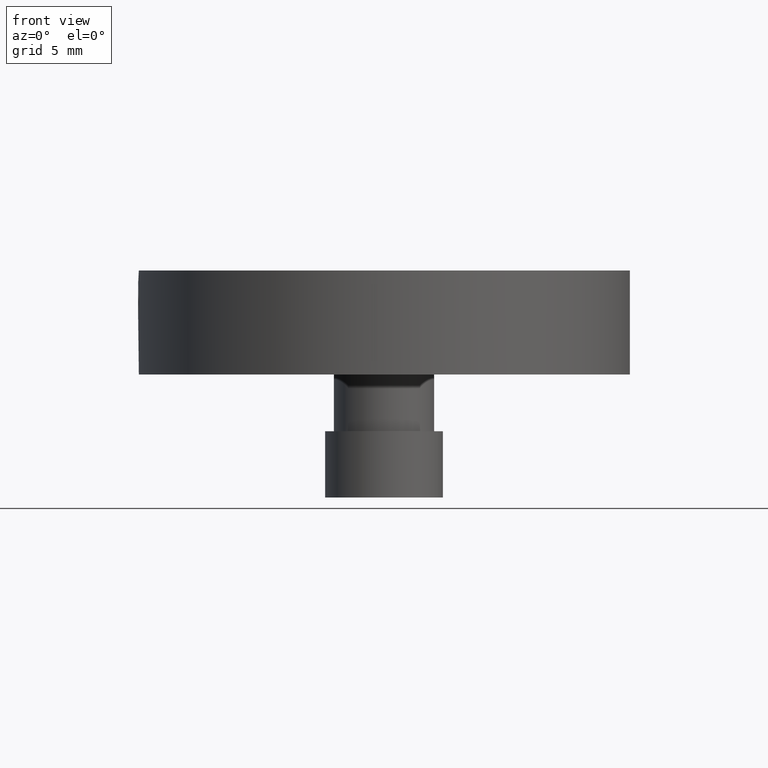
[diagram: clean part render]
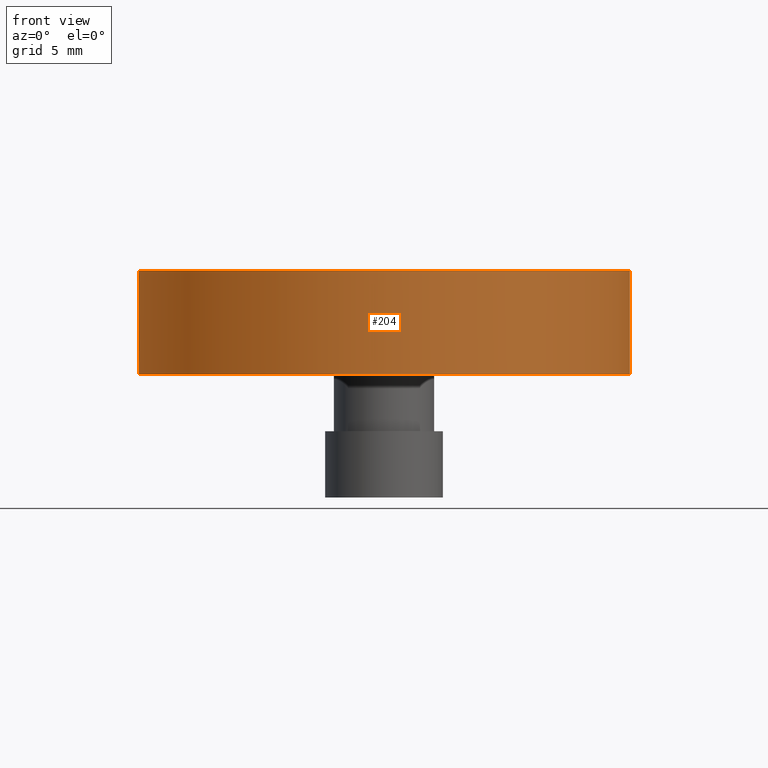
[diagram: same view with one face highlighted and labeled with its STEP entity id]
A machine part, front view. The second image highlights one B-rep face of the part: STEP entity #204.
In plain terms, the highlighted cylindrical surface (bore or boss wall) has radius 13 mm, axis along (-0, -0, -1).
Its self-contained STEP definition (entity closure, byte-faithful):
#36 = CARTESIAN_POINT ( 'NONE',  ( -2.622580538810405800, 11.45978471417523500, 30.39605732881070900 ) ) ;
#53 = CARTESIAN_POINT ( 'NONE',  ( -14.82252922792750400, -1.307006064618413600, 29.69992511542741600 ) ) ;
#63 = ORIENTED_EDGE ( 'NONE', *, *, #682, .T. ) ;
#68 = CARTESIAN_POINT ( 'NONE',  ( -14.82252461964641000, -1.621303590538306400, 31.30000000000000100 ) ) ;
#80 = VERTEX_POINT ( 'NONE', #131 ) ;
#85 = CARTESIAN_POINT ( 'NONE',  ( -1.123329929310135800, 11.46567262649079100, 30.90267437905258800 ) ) ;
#94 = ORIENTED_EDGE ( 'NONE', *, *, #422, .F. ) ;
#96 = CARTESIAN_POINT ( 'NONE',  ( -14.81662240141538200, -1.096968912534440600, 31.21300096579204800 ) ) ;
#99 = CARTESIAN_POINT ( 'NONE',  ( -1.613957579506320100, 11.48443150352268900, 29.69992511542741200 ) ) ;
#128 = CARTESIAN_POINT ( 'NONE',  ( -14.80702242026351800, -0.8766068660612937900, 30.00745313047755800 ) ) ;
#131 = CARTESIAN_POINT ( 'NONE',  ( 11.17747538035359500, -1.515573104758408500, 32.00000000000000000 ) ) ;
#134 = CARTESIAN_POINT ( 'NONE',  ( -1.022630233810322400, 11.45979467355989300, 30.39362672079548100 ) ) ;
#141 = CARTESIAN_POINT ( 'NONE',  ( -1.043578176361408700, 11.46113158442612000, 30.28971516613816600 ) ) ;
#150 = CARTESIAN_POINT ( 'NONE',  ( -2.031971557286105700, 11.48310109096356700, 29.72080807926919700 ) ) ;
#153 = CARTESIAN_POINT ( 'NONE',  ( -2.601873353675087300, 11.46110694508378100, 30.29118465402164900 ) ) ;
#163 = CARTESIAN_POINT ( 'NONE',  ( -14.79787942361108400, -0.7154682851607685500, 30.60477872244574700 ) ) ;
#170 = AXIS2_PLACEMENT_3D ( 'NONE', #823, #193, #322 ) ;
#181 = VERTEX_POINT ( 'NONE', #217 ) ;
#182 = CARTESIAN_POINT ( 'NONE',  ( -1.183558380949219600, 11.46892469585870200, 30.00745313047759300 ) ) ;
#193 = DIRECTION ( 'NONE',  ( 0.0000000000000000000, 0.0000000000000000000, 1.000000000000000000 ) ) ;
#204 = ADVANCED_FACE ( 'NONE', ( #595, #556, #1019, #961 ), #673, .T. ) ;
#217 = CARTESIAN_POINT ( 'NONE',  ( -14.82252461964640800, -1.515573104758408500, 31.29999999999998600 ) ) ;
#238 = CARTESIAN_POINT ( 'NONE',  ( -14.82119797541882800, -1.725051263409335300, 31.27917683621970500 ) ) ;
#245 = EDGE_CURVE ( 'NONE', #448, #448, #498, .T. ) ;
#264 = CARTESIAN_POINT ( 'NONE',  ( -1.927238695227914600, 11.48442458634776400, 29.70003751952715700 ) ) ;
#272 = EDGE_LOOP ( 'NONE', ( #600 ) ) ;
#286 = CARTESIAN_POINT ( 'NONE',  ( -14.80697607301748200, -0.8756730242535800700, 30.99135307947731000 ) ) ;
#322 = DIRECTION ( 'NONE',  ( 1.000000000000000000, 0.0000000000000000000, 0.0000000000000000000 ) ) ;
#326 = CARTESIAN_POINT ( 'NONE',  ( -2.225813205671809800, 11.47853160401613200, 29.80116784175281100 ) ) ;
#330 = CARTESIAN_POINT ( 'NONE',  ( -1.403920427422435900, 11.47852467701056300, 31.21300096579204800 ) ) ;
#331 = AXIS2_PLACEMENT_3D ( 'NONE', #383, #898, #776 ) ;
#348 = CARTESIAN_POINT ( 'NONE',  ( -2.463124913364892700, 11.46884883774370900, 30.00930179767690800 ) ) ;
#364 = CARTESIAN_POINT ( 'NONE',  ( -14.80377035089560100, -0.8163784144221610800, 30.90267437905255200 ) ) ;
#369 = CARTESIAN_POINT ( 'NONE',  ( -1.822524619646406000, 11.48442689524159600, 31.29999999999998600 ) ) ;
#372 = CARTESIAN_POINT ( 'NONE',  ( -1.611063648086606700, 11.48442689524159700, 31.30000000000000100 ) ) ;
#383 = CARTESIAN_POINT ( 'NONE',  ( -1.822524619646406000, -1.515573104758408500, 32.00000000000000000 ) ) ;
#403 = EDGE_LOOP ( 'NONE', ( #509 ) ) ;
#406 = CARTESIAN_POINT ( 'NONE',  ( -2.225754106602874300, 11.47853310112848900, 31.19885879968838400 ) ) ;
#408 = CARTESIAN_POINT ( 'NONE',  ( -1.405044301477783100, 11.47856227000365900, 29.78639557496708400 ) ) ;
#411 = CARTESIAN_POINT ( 'NONE',  ( -14.80380673562193500, -0.8170483899029096200, 30.09621726684438400 ) ) ;
#422 = EDGE_CURVE ( 'NONE', #80, #80, #1066, .T. ) ;
#428 = CARTESIAN_POINT ( 'NONE',  ( -14.81663082553329900, -1.918802591714883400, 31.19885879968842000 ) ) ;
#430 = CARTESIAN_POINT ( 'NONE',  ( -1.822524619646407100, 11.48442689524159600, 31.30000000000000100 ) ) ;
#432 = EDGE_LOOP ( 'NONE', ( #94 ) ) ;
#433 = CARTESIAN_POINT ( 'NONE',  ( -2.521764433455338000, 11.46567002708335000, 30.09744319564487800 ) ) ;
#440 = CARTESIAN_POINT ( 'NONE',  ( -2.313842125208391800, 11.47535407639271400, 29.85987456635151500 ) ) ;
#448 = VERTEX_POINT ( 'NONE', #369 ) ;
#460 = DIRECTION ( 'NONE',  ( 1.000000000000000000, 0.0000000000000000000, 0.0000000000000000000 ) ) ;
#468 = CARTESIAN_POINT ( 'NONE',  ( -1.928255105426304800, 11.48442689524159600, 31.30000000000000100 ) ) ;
#477 = CARTESIAN_POINT ( 'NONE',  ( -14.79920466948859200, -2.294921838787146800, 30.29118465402169800 ) ) ;
#481 = CARTESIAN_POINT ( 'NONE',  ( -14.82252461964641400, -1.515573104758408700, 31.29999999999999400 ) ) ;
#485 = CARTESIAN_POINT ( 'NONE',  ( -14.82119881536838200, -1.725020042398197000, 29.72080807926920800 ) ) ;
#490 = CARTESIAN_POINT ( 'NONE',  ( -14.79920099954467900, -0.7361604531672554200, 30.70865231625697000 ) ) ;
#498 = B_SPLINE_CURVE_WITH_KNOTS ( 'NONE', 3,
 ( #999, #468, #981, #406, #719, #540, #706, #36, #153, #433, #348, #440, #326, #150, #264, #99, #408, #182, #585, #141, #134, #691, #538, #85, #671, #330, #372, #430 ),
 .UNSPECIFIED., .T., .F.,
 ( 4, 2, 2, 2, 2, 2, 2, 2, 2, 2, 2, 2, 2, 4 ),
 ( 0.0000000000000000000, 0.0003126836564825200500, 0.0006253673129650440100, 0.001250734625930091100, 0.001563418282412614800, 0.001876101938895138100, 0.002188785595377661600, 0.002501469251860184700, 0.003126836564825230900, 0.003439520221307757900, 0.003752203877790284400, 0.004064887534272811400, 0.004377571190755338000, 0.005002938503720392000 ),
 .UNSPECIFIED. ) ;
#501 = CARTESIAN_POINT ( 'NONE',  ( -14.79788243858005000, -2.315629023922458600, 30.39605732881075200 ) ) ;
#509 = ORIENTED_EDGE ( 'NONE', *, *, #245, .T. ) ;
#538 = CARTESIAN_POINT ( 'NONE',  ( -1.043111968055219900, 11.46110327513986200, 30.70865231625701200 ) ) ;
#540 = CARTESIAN_POINT ( 'NONE',  ( -2.535821899976807200, 11.46568345235868600, 30.91804570211806400 ) ) ;
#556 = FACE_BOUND ( 'NONE', #403, .T. ) ;
#585 = CARTESIAN_POINT ( 'NONE',  ( -1.123999904790838400, 11.46570901121712000, 30.09621726684442300 ) ) ;
#595 = FACE_BOUND ( 'NONE', #998, .T. ) ;
#599 = CARTESIAN_POINT ( 'NONE',  ( -14.80694656214851300, -2.156173398476966400, 30.00930179767694400 ) ) ;
#600 = ORIENTED_EDGE ( 'NONE', *, *, #861, .T. ) ;
#608 = CARTESIAN_POINT ( 'NONE',  ( -14.81345180079752100, -2.006890610320474000, 29.85987456635155400 ) ) ;
#665 = CARTESIAN_POINT ( 'NONE',  ( -14.82252461964641400, -1.515573104758408700, 31.29999999999999400 ) ) ;
#671 = CARTESIAN_POINT ( 'NONE',  ( -1.182624539141562400, 11.46887834861266400, 30.99135307947732800 ) ) ;
#673 = CYLINDRICAL_SURFACE ( 'NONE', #331, 13.00000000000000200 ) ;
#679 = AXIS2_PLACEMENT_3D ( 'NONE', #1040, #962, #460 ) ;
#682 = EDGE_CURVE ( 'NONE', #181, #181, #821, .T. ) ;
#691 = CARTESIAN_POINT ( 'NONE',  ( -1.022419800048727000, 11.45978169920627500, 30.60477872244579700 ) ) ;
#694 = CARTESIAN_POINT ( 'NONE',  ( -14.79922930883094300, -0.7366266614734686700, 30.28971516613813400 ) ) ;
#706 = CARTESIAN_POINT ( 'NONE',  ( -2.622412435441067400, 11.45979507864010700, 30.70917383411071100 ) ) ;
#719 = CARTESIAN_POINT ( 'NONE',  ( -2.314484216313221800, 11.47532484181183700, 31.13942517939471300 ) ) ;
#734 = CARTESIAN_POINT ( 'NONE',  ( -14.79789239796470600, -0.7156787189223764400, 30.39362672079545600 ) ) ;
#736 = CARTESIAN_POINT ( 'NONE',  ( -14.81662932842093700, -1.918861690783895100, 29.80116784175282500 ) ) ;
#776 = DIRECTION ( 'NONE',  ( -1.000000000000000000, 0.0000000000000000000, 0.0000000000000000000 ) ) ;
#790 = CARTESIAN_POINT ( 'NONE',  ( 11.17747538035359500, -1.515573104758408500, 26.50000000000000400 ) ) ;
#812 = CIRCLE ( 'NONE', #170, 13.00000000000000200 ) ;
#821 = B_SPLINE_CURVE_WITH_KNOTS ( 'NONE', 3,
 ( #665, #68, #238, #428, #911, #1008, #969, #501, #477, #1054, #599, #608, #736, #485, #904, #53, #901, #128, #411, #694, #734, #163, #490, #364, #286, #96, #974, #481 ),
 .UNSPECIFIED., .T., .F.,
 ( 4, 2, 2, 2, 2, 2, 2, 2, 2, 2, 2, 2, 2, 4 ),
 ( 0.0000000000000000000, 0.0003126836564825193500, 0.0006253673129650387000, 0.001250734625930077400, 0.001563418282412602000, 0.001876101938895126400, 0.002188785595377651200, 0.002501469251860175600, 0.003126836564825225700, 0.003439520221307754400, 0.003752203877790282700, 0.004064887534272811400, 0.004377571190755340600, 0.005002938503720390200 ),
 .UNSPECIFIED. ) ;
#823 = CARTESIAN_POINT ( 'NONE',  ( -1.822524619646406000, -1.515573104758408500, 26.50000000000000400 ) ) ;
#861 = EDGE_CURVE ( 'NONE', #1023, #1023, #812, .T. ) ;
#898 = DIRECTION ( 'NONE',  ( -0.0000000000000000000, -0.0000000000000000000, -1.000000000000000000 ) ) ;
#901 = CARTESIAN_POINT ( 'NONE',  ( -14.81665999440849500, -1.098092786589870900, 29.78639557496706300 ) ) ;
#904 = CARTESIAN_POINT ( 'NONE',  ( -14.82252231075257300, -1.620287180340007600, 29.70003751952717500 ) ) ;
#911 = CARTESIAN_POINT ( 'NONE',  ( -14.81342256621665900, -2.007532701425233800, 31.13942517939474200 ) ) ;
#961 = FACE_OUTER_BOUND ( 'NONE', #272, .T. ) ;
#962 = DIRECTION ( 'NONE',  ( 0.0000000000000000000, 0.0000000000000000000, 1.000000000000000000 ) ) ;
#969 = CARTESIAN_POINT ( 'NONE',  ( -14.79789280304491500, -2.315460920553105600, 30.70917383411075700 ) ) ;
#974 = CARTESIAN_POINT ( 'NONE',  ( -14.82252461964641700, -1.304112133198609600, 31.29999999999999400 ) ) ;
#981 = CARTESIAN_POINT ( 'NONE',  ( -2.032002778297332200, 11.48310025101401300, 31.27917683621967600 ) ) ;
#998 = EDGE_LOOP ( 'NONE', ( #63 ) ) ;
#999 = CARTESIAN_POINT ( 'NONE',  ( -1.822524619646407100, 11.48442689524159600, 31.30000000000000100 ) ) ;
#1008 = CARTESIAN_POINT ( 'NONE',  ( -14.80378117676350200, -2.228870385088832500, 30.91804570211811100 ) ) ;
#1019 = FACE_OUTER_BOUND ( 'NONE', #432, .T. ) ;
#1023 = VERTEX_POINT ( 'NONE', #790 ) ;
#1040 = CARTESIAN_POINT ( 'NONE',  ( -1.822524619646406000, -1.515573104758408500, 32.00000000000000000 ) ) ;
#1054 = CARTESIAN_POINT ( 'NONE',  ( -14.80376775148815600, -2.214812918567408600, 30.09744319564492100 ) ) ;
#1066 = CIRCLE ( 'NONE', #679, 13.00000000000000200 ) ;